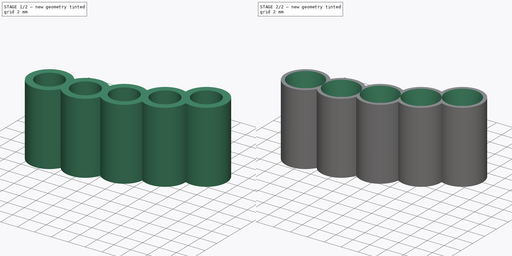
[diagram: build sequence overview — one tinted view per stage of 2, left to right]
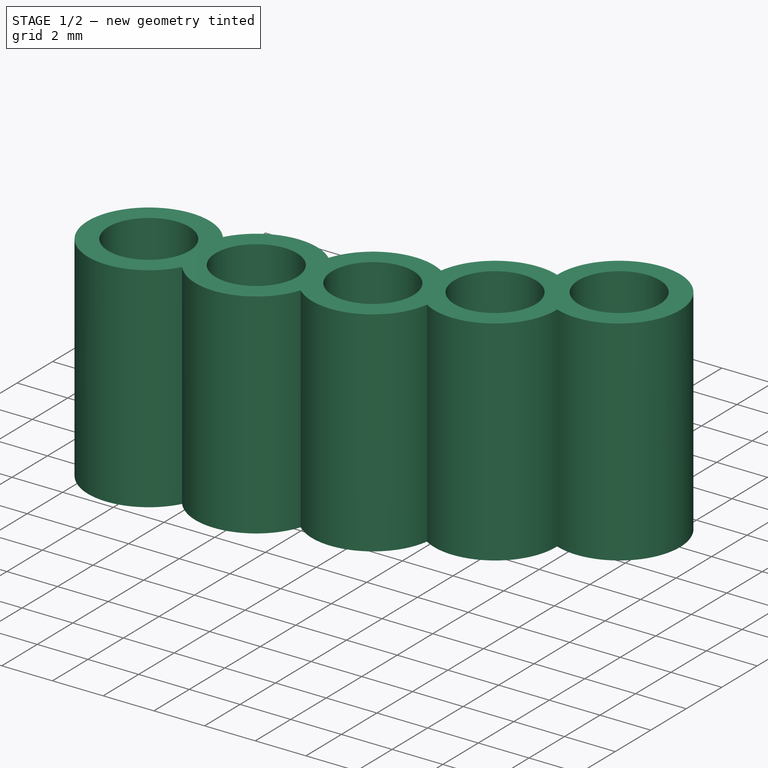
[diagram: stage 1 of 2 — iso view after this stage's code; geometry added in this stage tinted green]
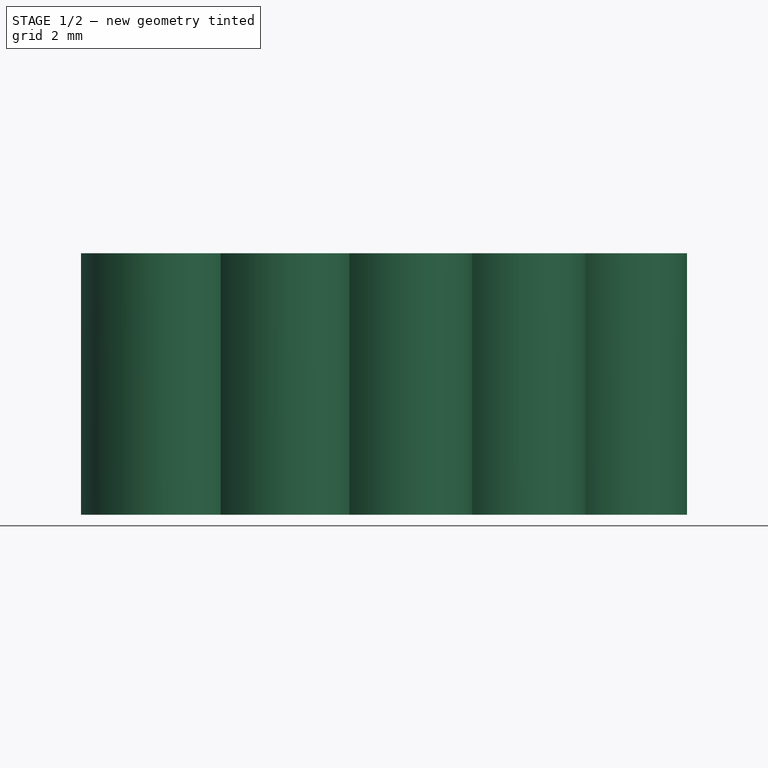
[diagram: stage 1 of 2 — front view after this stage's code; geometry added in this stage tinted green]
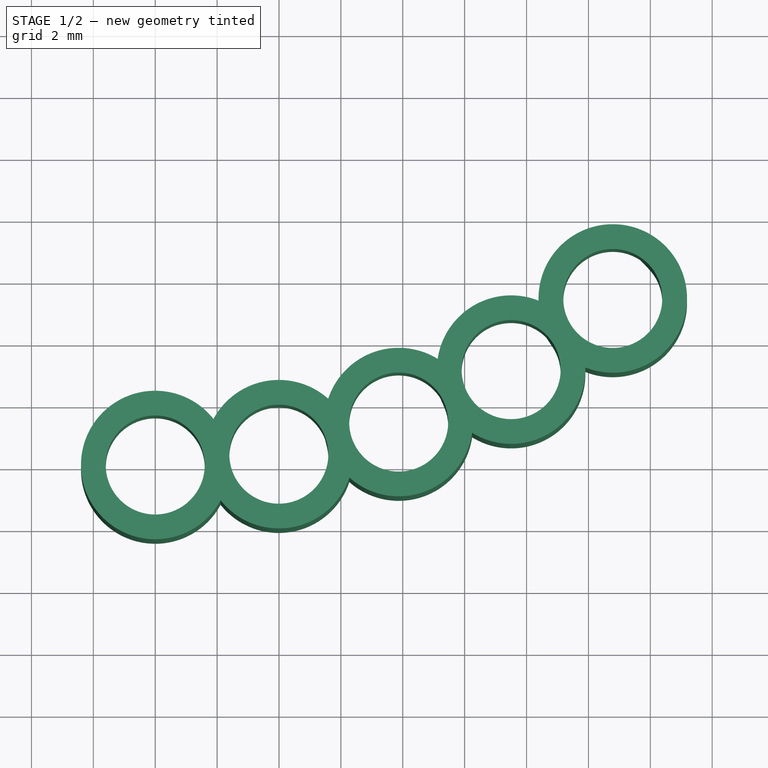
[diagram: stage 1 of 2 — top view after this stage's code; geometry added in this stage tinted green]
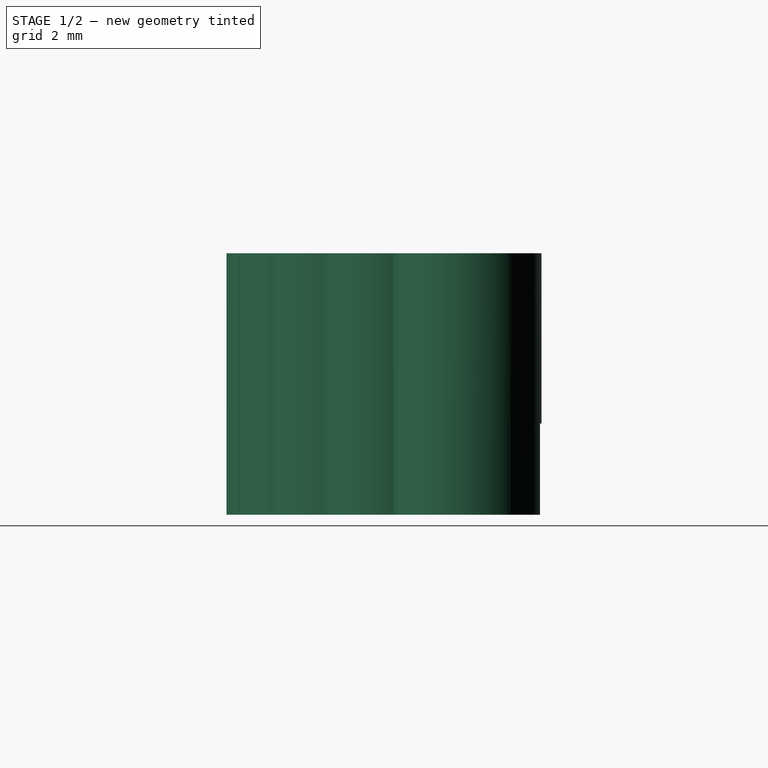
[diagram: stage 1 of 2 — right view after this stage's code; geometry added in this stage tinted green]
FCSTD DOCUMENT  (FreeCAD 0.21R33668 +26 (Git))
Label: PLASTIC-LIGHTPIPE-ISOLATOR
License: All rights reserved
LicenseURL: https://en.wikipedia.org/wiki/All_rights_reserved
objects: Sketcher::SketchObject×2, PartDesign::Pad×2, PartDesign::Plane×1, PartDesign::Chamfer×1, PartDesign::Body×1
note: 10 computed .brp shape members not serialized (recipe doc carries the construction recipe); baked Part::Feature solids carry a one-line shape summary decoded from their .brp

FEATURE [Sketcher::SketchObject] Sketch
  FullyConstrained = true
  MapMode = 5
  Support = -> [XY_Plane]
  sketch-geometry (19):
    g0: Circle CenterX=0 CenterY=23 CenterZ=0 NormalX=0 NormalY=0 NormalZ=1 AngleXU=0 Radius=23
    g1: LineSegment StartX=0 StartY=0 StartZ=0 EndX=3.99473 EndY=0.349567 EndZ=0
    g2: Circle CenterX=0 CenterY=0 CenterZ=0 NormalX=0 NormalY=0 NormalZ=1 AngleXU=0 Radius=1.6
    g3: Circle CenterX=3.99473 CenterY=0.349567 CenterZ=0 NormalX=0 NormalY=0 NormalZ=1 AngleXU=0 Radius=1.6
    g4: LineSegment StartX=3.99473 StartY=0.349567 StartZ=0 EndX=7.86804 EndY=1.38764 EndZ=0
    g5: LineSegment StartX=7.86804 StartY=1.38764 StartZ=0 EndX=11.5022 EndY=3.08267 EndZ=0
    g6: LineSegment StartX=11.5022 StartY=3.08267 StartZ=0 EndX=14.7867 EndY=5.38314 EndZ=0
    g7: Circle CenterX=7.86804 CenterY=1.38764 CenterZ=0 NormalX=0 NormalY=0 NormalZ=1 AngleXU=0 Radius=1.6
    g8: Circle CenterX=11.5022 CenterY=3.08267 CenterZ=0 NormalX=0 NormalY=0 NormalZ=1 AngleXU=0 Radius=1.6
    g9: Circle CenterX=14.7867 CenterY=5.38314 CenterZ=0 NormalX=0 NormalY=0 NormalZ=1 AngleXU=0 Radius=1.6
    g10: ArcOfCircle CenterX=7.86804 CenterY=1.38764 CenterZ=0 NormalX=0 NormalY=0 NormalZ=1 AngleXU=0 Radius=2.4 StartAngle=3.98535 EndAngle=6.1377
    g11: ArcOfCircle CenterX=14.7867 CenterY=5.38314 CenterZ=0 NormalX=0 NormalY=0 NormalZ=1 AngleXU=0 Radius=2.4 StartAngle=4.33449 EndAngle=9.45387
    g12: ArcOfCircle CenterX=3.99473 CenterY=0.349567 CenterZ=0 NormalX=0 NormalY=0 NormalZ=1 AngleXU=0 Radius=2.4 StartAngle=3.81078 EndAngle=5.96313
    g13: ArcOfCircle CenterX=0 CenterY=0 CenterZ=0 NormalX=0 NormalY=0 NormalZ=1 AngleXU=0 Radius=2.4 StartAngle=0.669191 EndAngle=5.78856
    g14: ArcOfCircle CenterX=3.99473 CenterY=0.349567 CenterZ=0 NormalX=0 NormalY=0 NormalZ=1 AngleXU=0 Radius=2.4 StartAngle=0.84376 EndAngle=2.64697
    g15: ArcOfCircle CenterX=7.86804 CenterY=1.38764 CenterZ=0 NormalX=0 NormalY=0 NormalZ=1 AngleXU=0 Radius=2.4 StartAngle=1.01833 EndAngle=2.82154
    g16: ArcOfCircle CenterX=11.5022 CenterY=3.08267 CenterZ=0 NormalX=0 NormalY=0 NormalZ=1 AngleXU=0 Radius=2.4 StartAngle=4.15992 EndAngle=6.31227
    g17: ArcOfCircle CenterX=11.5022 CenterY=3.08267 CenterZ=0 NormalX=0 NormalY=0 NormalZ=1 AngleXU=0 Radius=2.4 StartAngle=1.1929 EndAngle=2.99611
    g18: LineSegment StartX=0 StartY=23 StartZ=0 EndX=14.7867 EndY=5.38314 EndZ=0
  constraints (52):
    c: Diameter(g0) = 46
    c: PointOnObject(g0,g-2)
    c: PointOnObject(g1,g0)
    c: Distance(g1) = 4.01
    c: Diameter(g2) = 3.2
    c: Equal(g2,g3)
    c: PointOnObject(g4,g0)
    c: Coincident(g5,g4)
    c: PointOnObject(g5,g0)
    c: Coincident(g6,g5)
    c: PointOnObject(g6,g0)
    c: Equal(g1,g4)
    c: Equal(g4,g5)
    c: Equal(g5,g6)
    c: Coincident(g8,g5)
    c: Coincident(g9,g6)
    c: Coincident(g7,g4)
    c: Equal(g3,g7)
    c: Equal(g7,g8)
    c: Equal(g8,g9)
    c: Coincident(g10,g7)
    c: Coincident(g11,g9)
    c: Tangent(g0,g-1)
    c: Coincident(g1,g-1)
    c: Coincident(g2,g1)
    c: Coincident(g3,g4)
    c: Coincident(g3,g1)
    c: Equal(g10,g15)
    c: Coincident(g10,g15)
    c: Equal(g13,g12)
    c: Equal(g12,g10)
    c: Equal(g10,g16)
    c: Equal(g16,g11)
    c: Equal(g11,g17)
    c: Coincident(g12,g3)
    c: Coincident(g14,g3)
    c: Coincident(g13,g2)
    c: Coincident(g17,g8)
    c: Coincident(g16,g8)
    c: Diameter(g13) = 4.8
    c: Coincident(g18,g0)
    c: Coincident(g18,g9)
    c: Angle(g-2,g18) = 0.698278
    c: Coincident(g13,g14)
    c: Coincident(g14,g15)
    c: Coincident(g15,g17)
    c: Coincident(g11,g17)
    c: Coincident(g11,g16)
    c: Coincident(g10,g16)
    c: Coincident(g10,g12)
    c: Coincident(g12,g13)
    c: Equal(g13,g14)
FEATURE [PartDesign::Pad] Pad
  Direction = (0,0,1)
  Length = 5.5
  Length2 = 10
  Midplane = true
  Profile = -> Sketch
  ReferenceAxis = -> Sketch [N_Axis]
  Type = 0
FEATURE [PartDesign::Plane] DatumPlane
  AttachmentOffset = pos=(0,0,-2.75) rot=(0,0,1;0rad)
  Length = 60
  MapMode = 5
  Placement = pos=(0,0,-2.75) rot=(0,0,1;0rad)
  ResizeMode = 0
  Support = -> [XY_Plane]
  Width = 60
FEATURE [Sketcher::SketchObject] Sketch001
  FullyConstrained = true
  MapMode = 5
  Placement = pos=(0,0,-2.75) rot=(0,0,1;0rad)
  Support = -> [DatumPlane]
  sketch-geometry (31):
    g0: Circle CenterX=0 CenterY=23 CenterZ=0 NormalX=0 NormalY=0 NormalZ=1 AngleXU=0 Radius=23
    g1: ArcOfCircle CenterX=0 CenterY=23 CenterZ=0 NormalX=0 NormalY=0 NormalZ=1 AngleXU=0 Radius=21.6 StartAngle=4.6249 EndAngle=4.64277
    g2: ArcOfCircle CenterX=0 CenterY=0 CenterZ=0 NormalX=0 NormalY=0 NormalZ=1 AngleXU=0 Radius=1.6 StartAngle=3.07197 EndAngle=6.28319
    g3: ArcOfCircle CenterX=3.99473 CenterY=0.349567 CenterZ=0 NormalX=0 NormalY=0 NormalZ=1 AngleXU=0 Radius=1.6 StartAngle=3.24654 EndAngle=6.52738
    g4: ArcOfCircle CenterX=7.86804 CenterY=1.38764 CenterZ=0 NormalX=0 NormalY=0 NormalZ=1 AngleXU=0 Radius=1.6 StartAngle=3.42111 EndAngle=6.70195
    g5: ArcOfCircle CenterX=11.5022 CenterY=3.08267 CenterZ=0 NormalX=0 NormalY=0 NormalZ=1 AngleXU=0 Radius=1.6 StartAngle=3.59568 EndAngle=6.87651
    g6: ArcOfCircle CenterX=14.7867 CenterY=5.38314 CenterZ=0 NormalX=0 NormalY=0 NormalZ=1 AngleXU=0 Radius=1.6 StartAngle=3.77025 EndAngle=7.05108
    g7: ArcOfCircle CenterX=0 CenterY=0 CenterZ=0 NormalX=0 NormalY=0 NormalZ=1 AngleXU=0 Radius=2.4 StartAngle=2.47571 EndAngle=5.78856
    g8: LineSegment StartX=0 StartY=0 StartZ=0 EndX=3.99473 EndY=0.349567 EndZ=0
    g9: LineSegment StartX=3.99473 StartY=0.349567 StartZ=0 EndX=7.86804 EndY=1.38764 EndZ=0
    g10: LineSegment StartX=7.86804 StartY=1.38764 StartZ=0 EndX=11.5022 EndY=3.08267 EndZ=0
    g11: LineSegment StartX=11.5022 StartY=3.08267 StartZ=0 EndX=14.7867 EndY=5.38314 EndZ=0
    g12: ArcOfCircle CenterX=0 CenterY=23 CenterZ=0 NormalX=0 NormalY=0 NormalZ=1 AngleXU=0 Radius=21.6 StartAngle=4.78653 EndAngle=4.81734
    g13: ArcOfCircle CenterX=3.99473 CenterY=0.349567 CenterZ=0 NormalX=0 NormalY=0 NormalZ=1 AngleXU=0 Radius=2.4 StartAngle=3.81078 EndAngle=5.96313
    g14: ArcOfCircle CenterX=0 CenterY=23 CenterZ=0 NormalX=0 NormalY=0 NormalZ=1 AngleXU=0 Radius=21.6 StartAngle=4.95658 EndAngle=4.99191
    g15: ArcOfCircle CenterX=0 CenterY=23 CenterZ=0 NormalX=0 NormalY=0 NormalZ=1 AngleXU=0 Radius=21.6 StartAngle=5.13115 EndAngle=5.16648
    g16: ArcOfCircle CenterX=0 CenterY=23 CenterZ=0 NormalX=0 NormalY=0 NormalZ=1 AngleXU=0 Radius=21.6 StartAngle=5.30572 EndAngle=5.34105
    g17: ArcOfCircle CenterX=0 CenterY=23 CenterZ=0 NormalX=0 NormalY=0 NormalZ=1 AngleXU=0 Radius=21.6 StartAngle=5.48029 EndAngle=5.49815
    g18: ArcOfCircle CenterX=14.7867 CenterY=5.38314 CenterZ=0 NormalX=0 NormalY=0 NormalZ=1 AngleXU=0 Radius=2.4 StartAngle=4.33449 EndAngle=7.64735
    g19: ArcOfCircle CenterX=11.5022 CenterY=3.08267 CenterZ=0 NormalX=0 NormalY=0 NormalZ=1 AngleXU=0 Radius=2.4 StartAngle=4.15992 EndAngle=6.31227
    g20: ArcOfCircle CenterX=7.86804 CenterY=1.38764 CenterZ=0 NormalX=0 NormalY=0 NormalZ=1 AngleXU=0 Radius=2.4 StartAngle=3.98535 EndAngle=6.1377
    g21: LineSegment StartX=13.4926 StartY=4.44224 StartZ=0 EndX=12.7021 EndY=5.52952 EndZ=0
    g22: LineSegment StartX=12.8287 StartY=3.97727 StartZ=0 EndX=12.0771 EndY=5.09179 EndZ=0
    g23: LineSegment StartX=10.0643 StartY=2.38085 StartZ=0 EndX=9.47466 EndY=3.5889 EndZ=0
    g24: LineSegment StartX=9.32979 StartY=2.03825 StartZ=0 EndX=8.78317 EndY=3.26637 EndZ=0
    g25: LineSegment StartX=6.33014 StartY=0.946217 StartZ=0 EndX=5.95926 EndY=2.23832 EndZ=0
    g26: LineSegment StartX=5.54727 StartY=0.736401 StartZ=0 EndX=5.22226 EndY=2.0408 EndZ=0
    g27: LineSegment StartX=2.40354 StartY=0.181959 StartZ=0 EndX=2.26272 EndY=1.51884 EndZ=0
    g28: LineSegment StartX=15.9377 StartY=6.49454 StartZ=0 EndX=15.0039 EndY=7.46157 EndZ=0
    g29: LineSegment StartX=-1.59612 StartY=0.111304 StartZ=0 EndX=-1.50261 EndY=1.45233 EndZ=0
    g30: LineSegment StartX=1.6 StartY=0 StartZ=0 EndX=1.6 EndY=1.45934 EndZ=0
  constraints (74):
    c: PointOnObject(g0,g-2)
    c: Diameter(g0) = 46
    c: Tangent(g0,g-1)
    c: PointOnObject(g6,g0)
    c: Coincident(g1,g0)
    c: Diameter(g1) = 43.2
    c: Coincident(g2,g-1)
    c: PointOnObject(g3,g0)
    c: PointOnObject(g4,g0)
    c: PointOnObject(g5,g0)
    c: Coincident(g7,g2)
    c: Diameter(g7) = 4.8
    c: Coincident(g8,g2)
    c: Coincident(g8,g3)
    c: Coincident(g9,g3)
    c: Coincident(g9,g4)
    c: Coincident(g10,g4)
    c: Coincident(g10,g5)
    c: Coincident(g11,g5)
    c: Coincident(g11,g6)
    c: Equal(g8,g9)
    c: Equal(g9,g10)
    c: Equal(g10,g11)
    c: Equal(g2,g3)
    c: Equal(g3,g4)
    c: Equal(g4,g5)
    c: Equal(g5,g6)
    c: Diameter(g2) = 3.2
    c: Coincident(g17,g18)
    c: Coincident(g1,g7)
    c: Equal(g1,g12)
    c: Coincident(g1,g12)
    c: Equal(g12,g14)
    c: Coincident(g12,g14)
    c: Equal(g14,g15)
    c: Coincident(g14,g15)
    c: Equal(g15,g16)
    c: Coincident(g15,g16)
    c: Equal(g16,g17)
    c: Coincident(g16,g17)
    c: Coincident(g3,g13)
    c: Coincident(g4,g20)
    c: Coincident(g5,g19)
    c: Equal(g7,g13)
    c: Equal(g13,g20)
    c: Equal(g20,g19)
    c: Equal(g19,g18)
    c: Distance(g8) = 4.01
    c: Coincident(g18,g6)
    c: Vertical(g30)
    c: Perpendicular(g1,g29) = 1.5708
    c: Tangent(g2,g29) = 1.5708
    c: Coincident(g12,g30)
    c: Perpendicular(g12,g27) = 1.5708
    c: Perpendicular(g14,g25) = 1.5708
    c: Perpendicular(g14,g26) = 1.5708
    c: Perpendicular(g15,g23) = 1.5708
    c: Perpendicular(g15,g24) = 1.5708
    c: Perpendicular(g16,g21) = 1.5708
    c: Perpendicular(g16,g22) = 1.5708
    c: Perpendicular(g17,g28) = 1.5708
    c: Tangent(g6,g28) = -1.5708
    c: Tangent(g2,g30) = -1.5708
    c: Tangent(g3,g27) = 1.5708
    c: Tangent(g3,g26) = -1.5708
    c: Tangent(g4,g25) = 1.5708
    c: Tangent(g4,g24) = -1.5708
    c: Tangent(g5,g23) = 1.5708
    c: Tangent(g5,g22) = -1.5708
    c: Tangent(g6,g21) = 1.5708
    c: Coincident(g7,g13)
    c: Coincident(g13,g20)
    c: Coincident(g19,g20)
    c: Coincident(g18,g19)
FEATURE [PartDesign::Pad] Pad001
  BaseFeature = -> Pad
  Direction = (0,0,1)
  Length = 2.95
  Length2 = 10
  Profile = -> Sketch001
  ReferenceAxis = -> Sketch001 [N_Axis]
  Reversed = true
  Type = 0
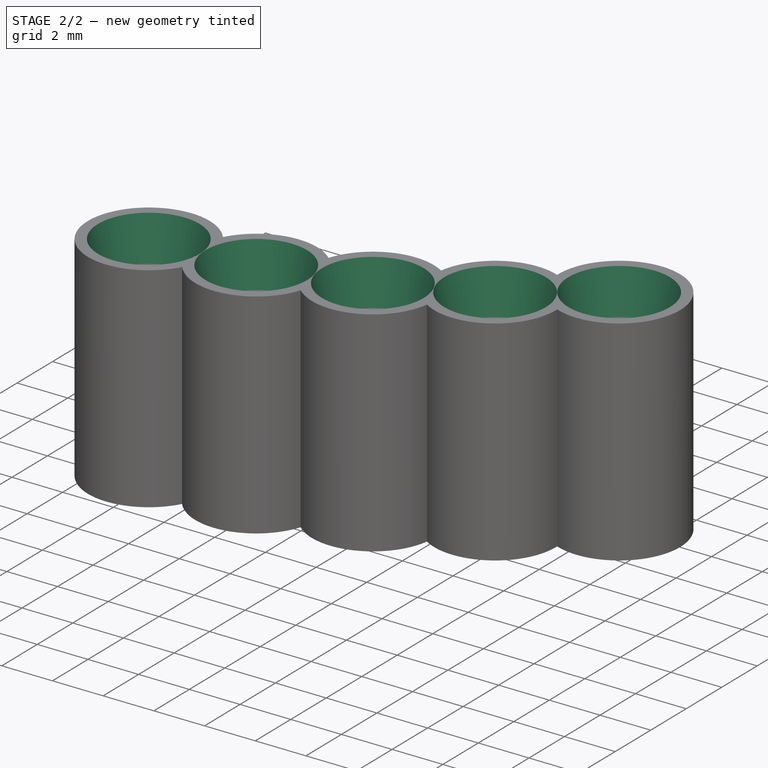
[diagram: stage 2 of 2 — iso view after this stage's code; geometry added in this stage tinted green]
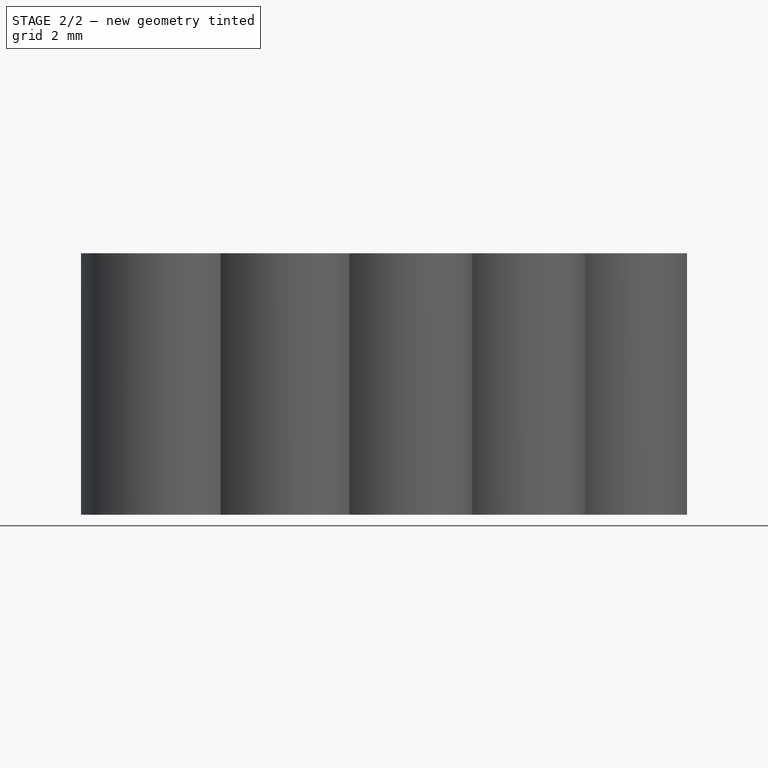
[diagram: stage 2 of 2 — front view after this stage's code; geometry added in this stage tinted green]
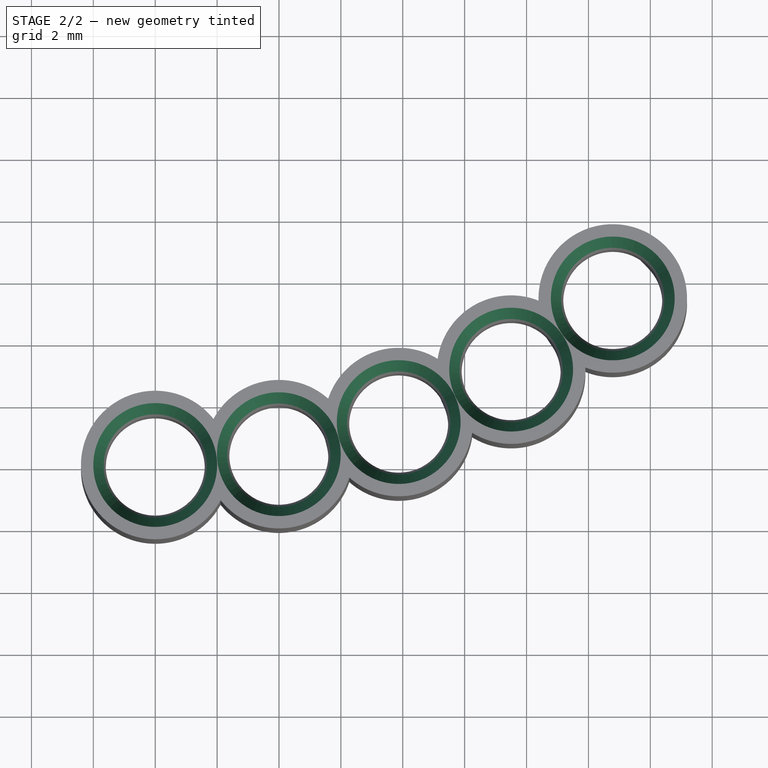
[diagram: stage 2 of 2 — top view after this stage's code; geometry added in this stage tinted green]
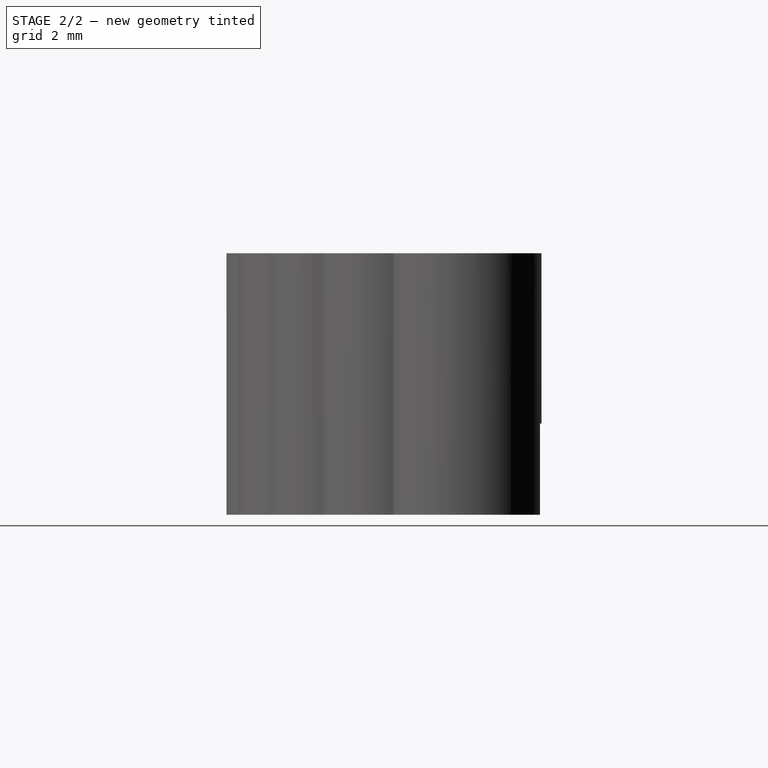
[diagram: stage 2 of 2 — right view after this stage's code; geometry added in this stage tinted green]
FEATURE [PartDesign::Chamfer] Chamfer
  Angle = 45
  Base = -> Pad001 [Edge20,Edge23,Edge19,Edge21,Edge22]
  BaseFeature = -> Pad001
  ChamferType = 1
  FlipDirection = false
  Size = 0.4
  Size2 = 2
  SupportTransform = false
  UseAllEdges = false
FEATURE [PartDesign::Body] Body  label="PLASTIC-LIGHTPIPE-ISOLATOR"
  Group = -> [Sketch,Pad,DatumPlane,Sketch001,Pad001,Chamfer]
  Origin = -> Origin
  Tip = -> Chamfer
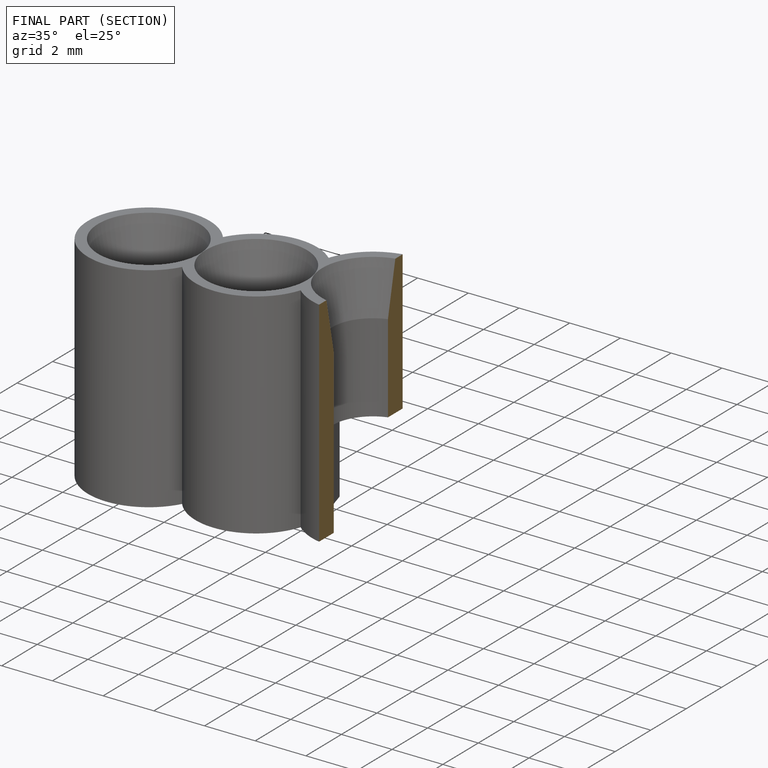
[diagram: finished part — half-section view (interior)]
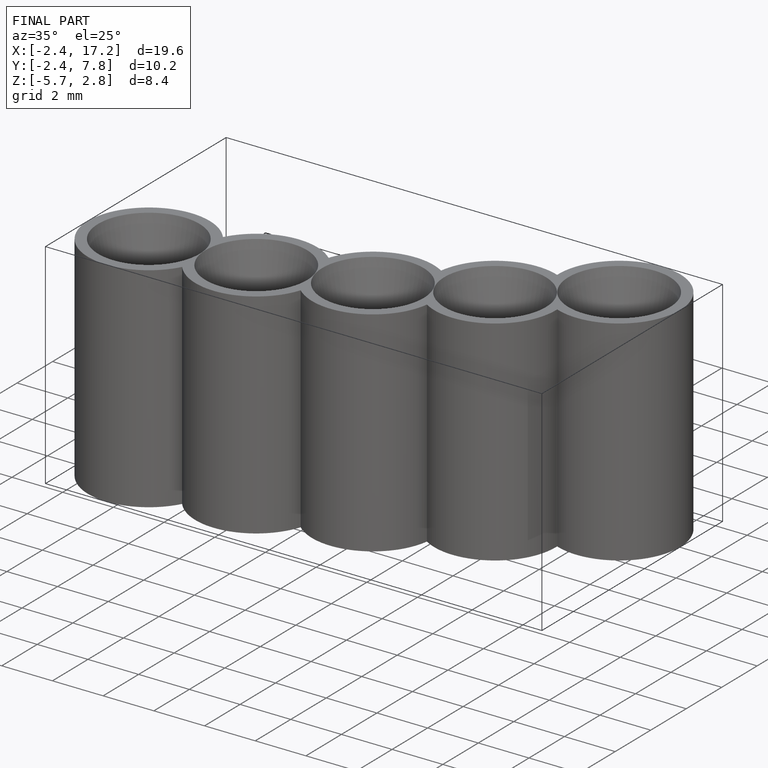
[diagram: finished part — iso view with bounding-box wireframe]
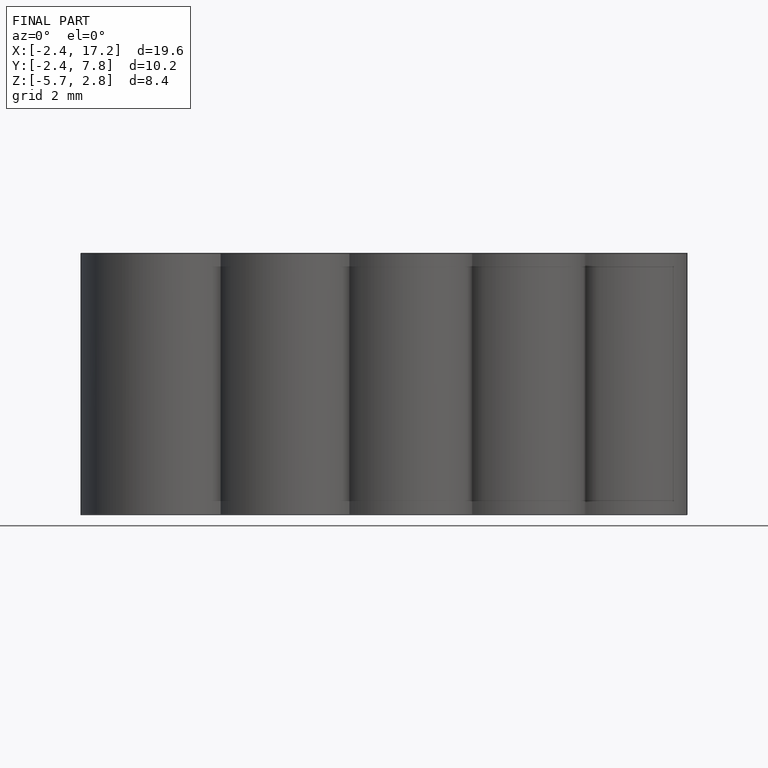
[diagram: finished part — front view with bounding-box wireframe]
